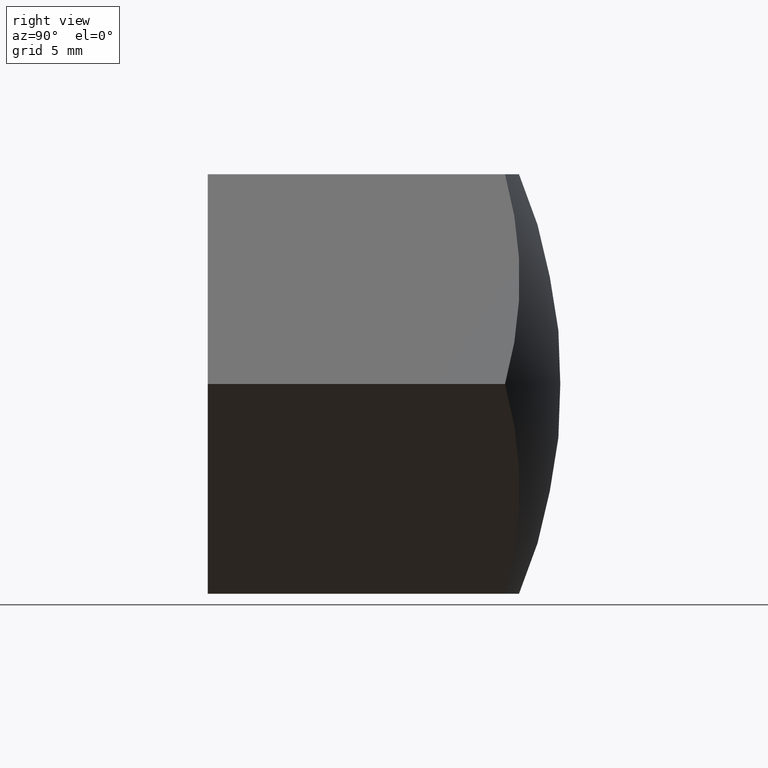
[diagram: clean part render]
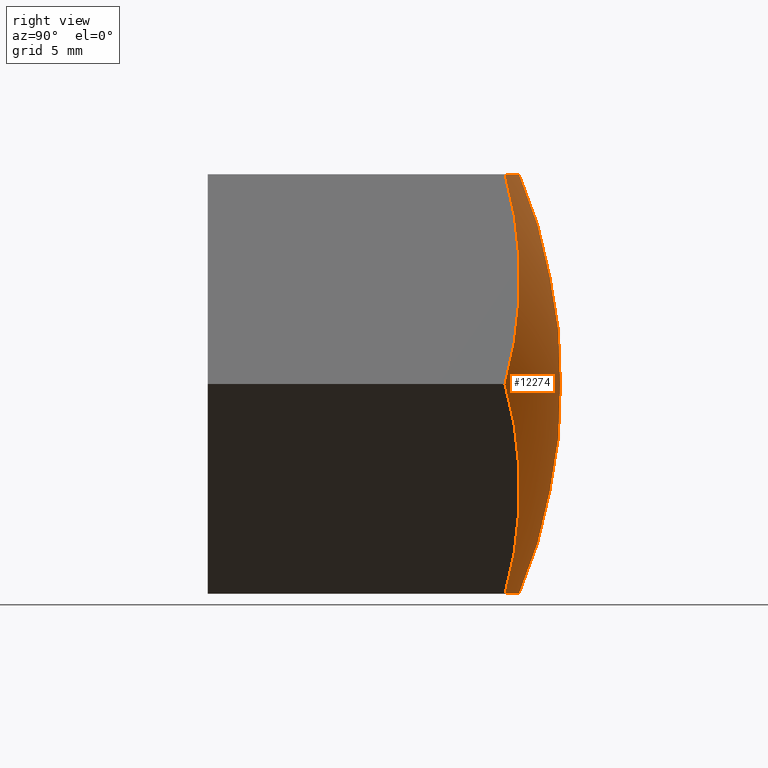
[diagram: same view with one face highlighted and labeled with its STEP entity id]
A machine part, right view. The second image highlights one B-rep face of the part: STEP entity #12274.
In plain terms, the highlighted spherical surface has radius 25 mm.
Its self-contained STEP definition (entity closure, byte-faithful):
#198 = CARTESIAN_POINT ( 'NONE',  ( 8.227241335952165002, -9.000000000000001776, 4.749999999999999112 ) ) ;
#819 = VERTEX_POINT ( 'NONE', #4332 ) ;
#920 = DIRECTION ( 'NONE',  ( 0.5000000000000004441, 1.800387963981119902E-15, 0.8660254037844384856 ) ) ;
#1139 = CIRCLE ( 'NONE', #2645, 23.12466215969435623 ) ;
#1239 = DIRECTION ( 'NONE',  ( 1.000000000000000000, 0.000000000000000000, 0.000000000000000000 ) ) ;
#1277 = CARTESIAN_POINT ( 'NONE',  ( 10.96965511460288845, 13.46478726065899245, -4.336808689942017736E-15 ) ) ;
#2068 = CARTESIAN_POINT ( 'NONE',  ( 1.502314598737160017E-15, -9.000000000000001776, -9.500000000000000000 ) ) ;
#2645 = AXIS2_PLACEMENT_3D ( 'NONE', #2844, #13983, #7185 ) ;
#2844 = CARTESIAN_POINT ( 'NONE',  ( -8.227241335952163226, -9.000000000000001776, 4.749999999999999112 ) ) ;
#3062 = CIRCLE ( 'NONE', #4064, 23.12466215969436689 ) ;
#3682 = AXIS2_PLACEMENT_3D ( 'NONE', #8336, #7164, #8379 ) ;
#3927 = AXIS2_PLACEMENT_3D ( 'NONE', #12205, #6492, #920 ) ;
#3970 = DIRECTION ( 'NONE',  ( 0.4999999999999999445, 8.851907489573840340E-15, -0.8660254037844388186 ) ) ;
#4064 = AXIS2_PLACEMENT_3D ( 'NONE', #198, #13598, #7997 ) ;
#4110 = VERTEX_POINT ( 'NONE', #1277 ) ;
#4332 = CARTESIAN_POINT ( 'NONE',  ( -10.96965511460288845, 13.46478726065899245, -3.469446951953614189E-15 ) ) ;
#4508 = CARTESIAN_POINT ( 'NONE',  ( 5.484827557301442447, 13.46478726065899245, -9.499999999999998224 ) ) ;
#5243 = DIRECTION ( 'NONE',  ( 1.000000000000000000, 4.425953744786920170E-15, 1.500323303317600083E-16 ) ) ;
#5321 = ORIENTED_EDGE ( 'NONE', *, *, #12684, .F. ) ;
#5627 = VERTEX_POINT ( 'NONE', #12946 ) ;
#5779 = CARTESIAN_POINT ( 'NONE',  ( 0.000000000000000000, -9.000000000000001776, 0.000000000000000000 ) ) ;
#5940 = EDGE_LOOP ( 'NONE', ( #8978, #5321, #12700, #9546, #6087, #10161 ) ) ;
#6087 = ORIENTED_EDGE ( 'NONE', *, *, #8829, .F. ) ;
#6139 = EDGE_CURVE ( 'NONE', #4110, #12685, #3062, .T. ) ;
#6238 = CIRCLE ( 'NONE', #3682, 23.12466215969435623 ) ;
#6492 = DIRECTION ( 'NONE',  ( 0.8660254037844384856, -0.000000000000000000, -0.5000000000000004441 ) ) ;
#6903 = DIRECTION ( 'NONE',  ( 0.000000000000000000, 0.000000000000000000, 1.000000000000000000 ) ) ;
#7164 = DIRECTION ( 'NONE',  ( 1.581383788144378940E-16, -0.000000000000000000, 1.000000000000000000 ) ) ;
#7185 = DIRECTION ( 'NONE',  ( -0.5000000000000001110, -4.425953744786920170E-15, -0.8660254037844387076 ) ) ;
#7728 = CIRCLE ( 'NONE', #3927, 23.12466215969435623 ) ;
#7997 = DIRECTION ( 'NONE',  ( -0.4999999999999999445, 4.425953744786917804E-15, 0.8660254037844387076 ) ) ;
#8056 = EDGE_CURVE ( 'NONE', #8119, #4110, #7728, .T. ) ;
#8119 = VERTEX_POINT ( 'NONE', #4508 ) ;
#8336 = CARTESIAN_POINT ( 'NONE',  ( 1.502314598737160017E-15, -9.000000000000001776, 9.500000000000000000 ) ) ;
#8379 = DIRECTION ( 'NONE',  ( -1.000000000000000000, 8.851907489573840340E-15, 1.500323303317600083E-16 ) ) ;
#8694 = DIRECTION ( 'NONE',  ( 1.581383788144378940E-16, -0.000000000000000000, -1.000000000000000000 ) ) ;
#8724 = AXIS2_PLACEMENT_3D ( 'NONE', #2068, #8694, #5243 ) ;
#8829 = EDGE_CURVE ( 'NONE', #12685, #14095, #6238, .T. ) ;
#8978 = ORIENTED_EDGE ( 'NONE', *, *, #8056, .F. ) ;
#9160 = FACE_OUTER_BOUND ( 'NONE', #5940, .T. ) ;
#9546 = ORIENTED_EDGE ( 'NONE', *, *, #11300, .F. ) ;
#10161 = ORIENTED_EDGE ( 'NONE', *, *, #6139, .F. ) ;
#10372 = CIRCLE ( 'NONE', #12073, 23.12466215969435623 ) ;
#10654 = CARTESIAN_POINT ( 'NONE',  ( -8.227241335952166779, -9.000000000000001776, -4.749999999999998224 ) ) ;
#11300 = EDGE_CURVE ( 'NONE', #14095, #819, #1139, .T. ) ;
#11471 = CARTESIAN_POINT ( 'NONE',  ( -5.484827557301440670, 13.46478726065899245, 9.500000000000000000 ) ) ;
#11719 = EDGE_CURVE ( 'NONE', #819, #5627, #10372, .T. ) ;
#12073 = AXIS2_PLACEMENT_3D ( 'NONE', #10654, #13973, #3970 ) ;
#12205 = CARTESIAN_POINT ( 'NONE',  ( 8.227241335952163226, -9.000000000000001776, -4.750000000000003553 ) ) ;
#12262 = AXIS2_PLACEMENT_3D ( 'NONE', #5779, #6903, #1239 ) ;
#12274 = ADVANCED_FACE ( 'NONE', ( #9160 ), #13329, .T. ) ;
#12684 = EDGE_CURVE ( 'NONE', #5627, #8119, #14010, .T. ) ;
#12685 = VERTEX_POINT ( 'NONE', #13040 ) ;
#12700 = ORIENTED_EDGE ( 'NONE', *, *, #11719, .F. ) ;
#12946 = CARTESIAN_POINT ( 'NONE',  ( -5.484827557301448664, 13.46478726065899245, -9.499999999999996447 ) ) ;
#13040 = CARTESIAN_POINT ( 'NONE',  ( 5.484827557301442447, 13.46478726065899245, 9.499999999999998224 ) ) ;
#13329 = SPHERICAL_SURFACE ( 'NONE', #12262, 25.00000000000000000 ) ;
#13598 = DIRECTION ( 'NONE',  ( 0.8660254037844388186, -0.000000000000000000, 0.5000000000000001110 ) ) ;
#13973 = DIRECTION ( 'NONE',  ( -0.8660254037844389297, 0.000000000000000000, -0.4999999999999998890 ) ) ;
#13983 = DIRECTION ( 'NONE',  ( -0.8660254037844385966, -0.000000000000000000, 0.5000000000000001110 ) ) ;
#14010 = CIRCLE ( 'NONE', #8724, 23.12466215969435623 ) ;
#14095 = VERTEX_POINT ( 'NONE', #11471 ) ;